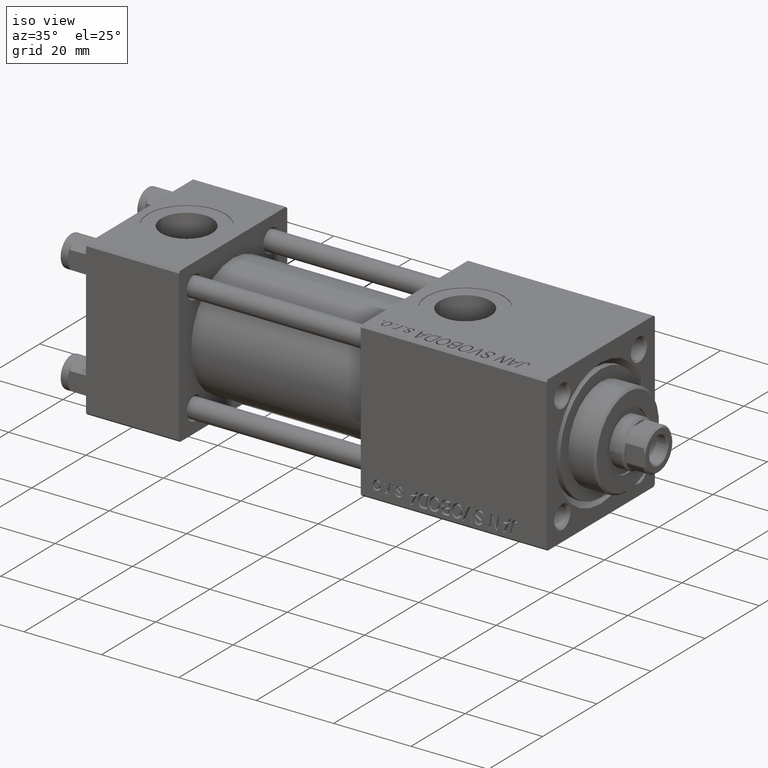
[diagram: clean part render]
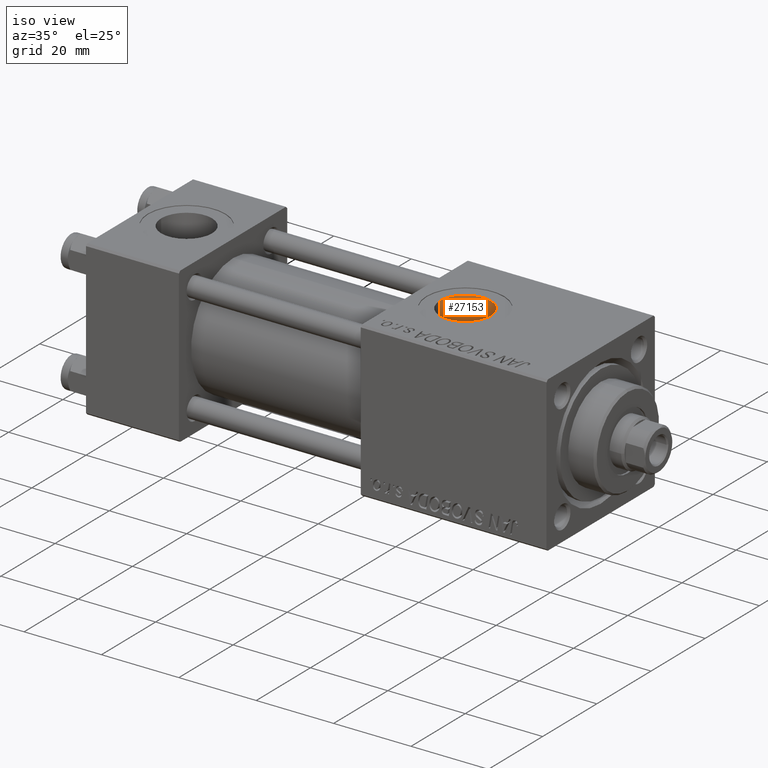
[diagram: same view with one face highlighted and labeled with its STEP entity id]
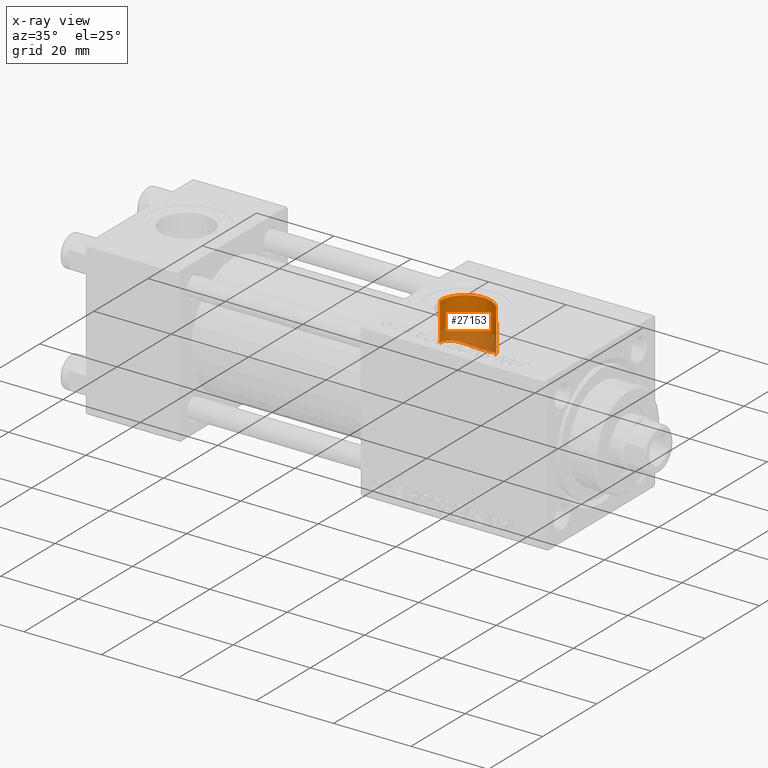
[diagram: x-ray of the same camera — body ghosted, the highlighted face saturated]
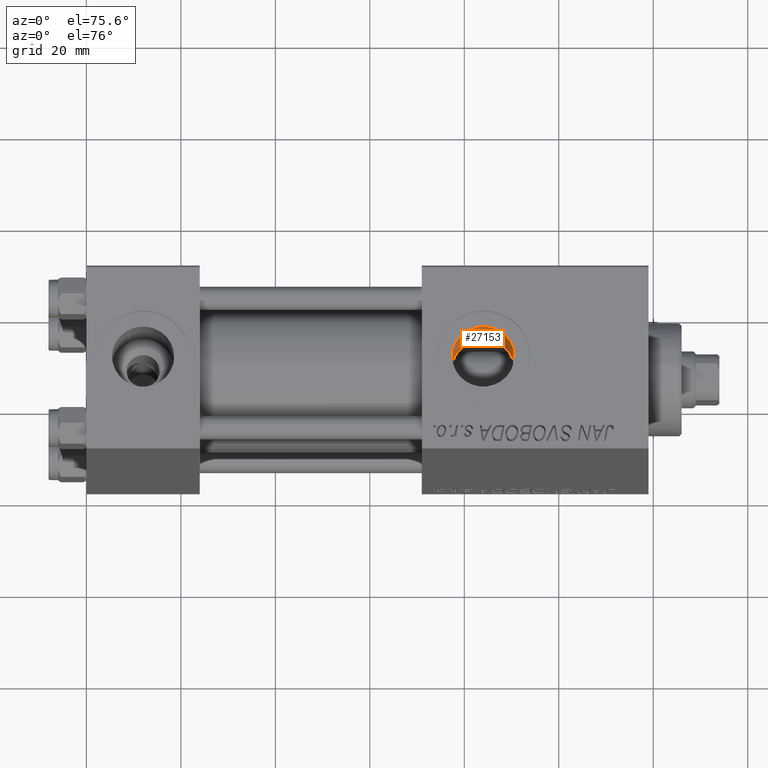
[diagram: same view with one face highlighted and labeled with its STEP entity id]
A machine part, iso view. The second image highlights one B-rep face of the part: STEP entity #27153.
The next image is the same camera in x-ray: the body ghosted, the highlighted face saturated — about 36% of this face is hidden behind the body in this view.
A second angle (auxiliary view) of the same face is appended — the face is thin or edge-on in the first view.
In plain terms, the highlighted cylindrical surface (edge-blend (fillet) strip) has radius 6.58 mm, axis along (0, 0, -1).
Its self-contained STEP definition (entity closure, byte-faithful):
#273 = CARTESIAN_POINT ( 'NONE',  ( 90.58000000000154728, 1.836897619300433381E-15, 15.00000000000000000 ) ) ;
#436 = CARTESIAN_POINT ( 'NONE',  ( 78.92452899478391259, 4.191895100649813521, 9.080368974035573970 ) ) ;
#1214 = CARTESIAN_POINT ( 'NONE',  ( 86.19913985023920588, 6.213801701240062592, 7.837395548022279002 ) ) ;
#1358 = ORIENTED_EDGE ( 'NONE', *, *, #16466, .F. ) ;
#1422 = VERTEX_POINT ( 'NONE', #51761 ) ;
#1462 = CARTESIAN_POINT ( 'NONE',  ( 89.01137633077168232, 4.281013922256128978, 9.043334261708560362 ) ) ;
#1574 = VECTOR ( 'NONE', #32371, 1000.000000000000000 ) ;
#2580 = AXIS2_PLACEMENT_3D ( 'NONE', #3685, #39267, #3150 ) ;
#3150 = DIRECTION ( 'NONE',  ( 1.000000000000000000, 0.000000000000000000, 0.000000000000000000 ) ) ;
#3685 = CARTESIAN_POINT ( 'NONE',  ( 84.00000000000000000, -1.734723475976806897E-15, 19.80000000000000071 ) ) ;
#4638 = CARTESIAN_POINT ( 'NONE',  ( 81.49663029925129365, 6.097981844537015306, 7.927249195841285179 ) ) ;
#4674 = ORIENTED_EDGE ( 'NONE', *, *, #51998, .T. ) ;
#5162 = CARTESIAN_POINT ( 'NONE',  ( 77.72206397560209723, 1.980885511870404958, 9.803792647692771922 ) ) ;
#5431 = CARTESIAN_POINT ( 'NONE',  ( 79.29945075163941226, 4.620086428005418355, 8.874409408838401347 ) ) ;
#5773 = DIRECTION ( 'NONE',  ( -1.000000000000000000, 0.000000000000000000, 0.000000000000000000 ) ) ;
#7043 = EDGE_CURVE ( 'NONE', #22260, #30270, #8352, .T. ) ;
#7061 = CARTESIAN_POINT ( 'NONE',  ( 77.42954415386088840, 0.4077000747566019712, 9.993712614140443762 ) ) ;
#8349 = CARTESIAN_POINT ( 'NONE',  ( 85.82542148765864454, 6.334517411161552758, 7.738665973506989815 ) ) ;
#8352 = LINE ( 'NONE', #44225, #32692 ) ;
#9125 = CARTESIAN_POINT ( 'NONE',  ( 88.75576429004956935, 4.563405353889827154, 8.902983152274309475 ) ) ;
#11605 = DIRECTION ( 'NONE',  ( 0.000000000000000000, 0.000000000000000000, -1.000000000000000000 ) ) ;
#11760 = CARTESIAN_POINT ( 'NONE',  ( 90.30000000000001137, 1.899052395280416805, 9.818024241158690657 ) ) ;
#12249 = AXIS2_PLACEMENT_3D ( 'NONE', #17633, #33721, #5773 ) ;
#12299 = CARTESIAN_POINT ( 'NONE',  ( 90.03413885016284723, 2.653169395164264976, 9.648548488114556676 ) ) ;
#12555 = EDGE_CURVE ( 'NONE', #1422, #19135, #30338, .T. ) ;
#13935 = FACE_OUTER_BOUND ( 'NONE', #43744, .T. ) ;
#14732 = ORIENTED_EDGE ( 'NONE', *, *, #7043, .F. ) ;
#15286 = LINE ( 'NONE', #47481, #46513 ) ;
#16249 = CARTESIAN_POINT ( 'NONE',  ( 77.41999999999846693, 1.225496641077837722E-15, 9.999999999999998224 ) ) ;
#16466 = EDGE_CURVE ( 'NONE', #19135, #47437, #15286, .T. ) ;
#16502 = CARTESIAN_POINT ( 'NONE',  ( 80.48063172447184854, 5.572696846752806188, 8.306367771682850787 ) ) ;
#16759 = CARTESIAN_POINT ( 'NONE',  ( 82.63059524258804345, 6.448383834521553837, 7.643587924518619126 ) ) ;
#17017 = CARTESIAN_POINT ( 'NONE',  ( 89.47113332388794049, 3.675278640241169903, 9.305982037814699126 ) ) ;
#17542 = CARTESIAN_POINT ( 'NONE',  ( 78.57832010883362273, 3.733451394700813442, 9.278448749827713726 ) ) ;
#17633 = CARTESIAN_POINT ( 'NONE',  ( 84.00000000000000000, -1.734723475976806897E-15, 42.80000000000000426 ) ) ;
#19074 = CARTESIAN_POINT ( 'NONE',  ( 90.30000000000001137, 1.899052395280416805, 14.87930105885285670 ) ) ;
#19135 = VERTEX_POINT ( 'NONE', #25545 ) ;
#19984 = LINE ( 'NONE', #24719, #1574 ) ;
#20348 = B_SPLINE_CURVE_WITH_KNOTS ( 'NONE', 3,
 ( #19074, #47571, #27258, #43355 ),
 .UNSPECIFIED., .F., .F.,
 ( 4, 4 ),
 ( 0.000000000000000000, 0.001923267627926015643 ),
 .UNSPECIFIED. ) ;
#20714 = CARTESIAN_POINT ( 'NONE',  ( 85.04005595195334877, 6.509727955661519516, 7.591870904138360743 ) ) ;
#21504 = CARTESIAN_POINT ( 'NONE',  ( 83.83547327919450254, 6.590311166413664878, 7.521181861579123051 ) ) ;
#21929 = VERTEX_POINT ( 'NONE', #26759 ) ;
#22260 = VERTEX_POINT ( 'NONE', #26963 ) ;
#24424 = CARTESIAN_POINT ( 'NONE',  ( 82.24366288463141927, 6.353544079654159127, 7.723932937122186537 ) ) ;
#24719 = CARTESIAN_POINT ( 'NONE',  ( 77.41999999999846693, -1.734723475976806897E-15, 42.80000000000000426 ) ) ;
#25205 = CARTESIAN_POINT ( 'NONE',  ( 77.46686778345895164, 0.8095015862947814167, 9.969213526992616536 ) ) ;
#25545 = CARTESIAN_POINT ( 'NONE',  ( 90.58000000000154728, -9.289058821376599092E-16, 19.80000000000000071 ) ) ;
#26083 = ORIENTED_EDGE ( 'NONE', *, *, #41277, .T. ) ;
#26759 = CARTESIAN_POINT ( 'NONE',  ( 77.41999999999846693, 1.225496641077837722E-15, 9.999999999999998224 ) ) ;
#26963 = CARTESIAN_POINT ( 'NONE',  ( 90.30000000000001137, 1.899052395280416805, 14.87930105885285670 ) ) ;
#27153 = ADVANCED_FACE ( 'NONE', ( #13935 ), #41902, .F. ) ;
#27258 = CARTESIAN_POINT ( 'NONE',  ( 90.58000000000154728, 0.6482402319151120418, 15.00000000000000000 ) ) ;
#27871 = DIRECTION ( 'NONE',  ( 0.000000000000000000, 0.000000000000000000, -1.000000000000000000 ) ) ;
#28894 = CARTESIAN_POINT ( 'NONE',  ( 77.49462714226881133, 1.008229431408755206, 9.951015238921746331 ) ) ;
#29147 = CARTESIAN_POINT ( 'NONE',  ( 79.57202415259416739, 4.882110597333562119, 8.731710965079535924 ) ) ;
#29412 = CARTESIAN_POINT ( 'NONE',  ( 87.25879362717218157, 5.729011173614271257, 8.200005008995757905 ) ) ;
#30270 = VERTEX_POINT ( 'NONE', #11760 ) ;
#30338 = CIRCLE ( 'NONE', #2580, 6.580000000001542837 ) ;
#32371 = DIRECTION ( 'NONE',  ( 0.000000000000000000, 0.000000000000000000, -1.000000000000000000 ) ) ;
#32585 = CARTESIAN_POINT ( 'NONE',  ( 83.42309077254218153, 6.566894182961647175, 7.542015064089320653 ) ) ;
#32692 = VECTOR ( 'NONE', #27871, 1000.000000000000000 ) ;
#32845 = CARTESIAN_POINT ( 'NONE',  ( 80.16598197494323585, 5.361182684198095849, 8.446034601453003887 ) ) ;
#33112 = CARTESIAN_POINT ( 'NONE',  ( 86.91556528692413508, 5.911601028564673399, 8.067779981975611747 ) ) ;
#33367 = CARTESIAN_POINT ( 'NONE',  ( 78.16952377845269950, 3.074422462291888092, 9.522197844733907957 ) ) ;
#33721 = DIRECTION ( 'NONE',  ( 0.000000000000000000, 0.000000000000000000, -1.000000000000000000 ) ) ;
#36187 = B_SPLINE_CURVE_WITH_KNOTS ( 'NONE', 3,
 ( #16249, #43436, #7061, #25205, #28894, #44990, #48939, #5162, #37057, #44726, #33367, #44468, #17542, #41558, #436, #5431, #29147, #32845, #16502, #49462, #4638, #24424, #16759, #32585, #21504, #37578, #20714, #8349, #1214, #33112, #29412, #41025, #48437, #9125, #1462, #17017, #36792, #12299, #36541, #45513 ),
 .UNSPECIFIED., .F., .F.,
 ( 4, 2, 2, 2, 2, 2, 2, 2, 2, 2, 2, 2, 2, 2, 2, 2, 2, 2, 2, 4 ),
 ( 0.01932465968159079173, 0.01992623976258372023, 0.02052781984357664874, 0.02112939992456958072, 0.02173098000556250922, 0.02293414016754835236, 0.02353572024854126005, 0.02413730032953417121, 0.02534046049151999352, 0.02654362065350581931, 0.02774678081549164163, 0.02894994097747746048, 0.03015310113946328627, 0.03135626130144910512, 0.03255942146343493437, 0.03376258162542075669, 0.03496574178740657901, 0.03616890194939239439, 0.03737206211137822365, 0.03857522227336403903 ),
 .UNSPECIFIED. ) ;
#36541 = CARTESIAN_POINT ( 'NONE',  ( 90.18394818542550695, 2.284047792793505671, 9.743556464968632369 ) ) ;
#36792 = CARTESIAN_POINT ( 'NONE',  ( 89.67635654325876260, 3.350987301719415612, 9.428927821902620465 ) ) ;
#37057 = CARTESIAN_POINT ( 'NONE',  ( 77.78548192684070273, 2.171457386535522005, 9.763238620524230527 ) ) ;
#37578 = CARTESIAN_POINT ( 'NONE',  ( 84.64208553656848721, 6.561020993393114509, 7.546746410828856000 ) ) ;
#39267 = DIRECTION ( 'NONE',  ( -0.000000000000000000, -0.000000000000000000, -1.000000000000000000 ) ) ;
#40777 = ORIENTED_EDGE ( 'NONE', *, *, #12555, .F. ) ;
#41025 = CARTESIAN_POINT ( 'NONE',  ( 87.89770756635016369, 5.314995828701263747, 8.474223888701592600 ) ) ;
#41277 = EDGE_CURVE ( 'NONE', #1422, #21929, #19984, .T. ) ;
#41558 = CARTESIAN_POINT ( 'NONE',  ( 78.80526461953910200, 4.043265572017154419, 9.147692279144168381 ) ) ;
#41902 = CYLINDRICAL_SURFACE ( 'NONE', #12249, 6.580000000001542837 ) ;
#41950 = EDGE_CURVE ( 'NONE', #22260, #47437, #20348, .T. ) ;
#43355 = CARTESIAN_POINT ( 'NONE',  ( 90.58000000000154728, 1.836897619300433381E-15, 15.00000000000000000 ) ) ;
#43436 = CARTESIAN_POINT ( 'NONE',  ( 77.41999999999845272, 0.2033100982330938999, 10.00000000000000178 ) ) ;
#43744 = EDGE_LOOP ( 'NONE', ( #1358, #40777, #26083, #4674, #14732, #47229 ) ) ;
#44225 = CARTESIAN_POINT ( 'NONE',  ( 90.30000000000001137, 1.899052395280416805, 42.80000000000000426 ) ) ;
#44468 = CARTESIAN_POINT ( 'NONE',  ( 78.47036046458491398, 3.571696826447866790, 9.342058825423189106 ) ) ;
#44726 = CARTESIAN_POINT ( 'NONE',  ( 77.99778063450312970, 2.725070813951062210, 9.629029610001953898 ) ) ;
#44990 = CARTESIAN_POINT ( 'NONE',  ( 77.56787295357401035, 1.401479312405162991, 9.903286656888813155 ) ) ;
#45513 = CARTESIAN_POINT ( 'NONE',  ( 90.30000000000001137, 1.899052395280416805, 9.818024241158690657 ) ) ;
#46513 = VECTOR ( 'NONE', #11605, 1000.000000000000000 ) ;
#47229 = ORIENTED_EDGE ( 'NONE', *, *, #41950, .T. ) ;
#47437 = VERTEX_POINT ( 'NONE', #273 ) ;
#47481 = CARTESIAN_POINT ( 'NONE',  ( 90.58000000000154728, -9.289058821376597120E-16, 42.80000000000000426 ) ) ;
#47571 = CARTESIAN_POINT ( 'NONE',  ( 90.48627106246551932, 1.281108574220367835, 14.95816952780117504 ) ) ;
#48437 = CARTESIAN_POINT ( 'NONE',  ( 88.19646942446757976, 5.082480376344788553, 8.617202020241876426 ) ) ;
#48939 = CARTESIAN_POINT ( 'NONE',  ( 77.61336014068284328, 1.596001079245348286, 9.873755022540338544 ) ) ;
#49462 = CARTESIAN_POINT ( 'NONE',  ( 81.14578869086805923, 5.940907422896437140, 8.047130836318883595 ) ) ;
#51761 = CARTESIAN_POINT ( 'NONE',  ( 77.41999999999846693, -1.734723475976806897E-15, 19.80000000000000071 ) ) ;
#51998 = EDGE_CURVE ( 'NONE', #21929, #30270, #36187, .T. ) ;